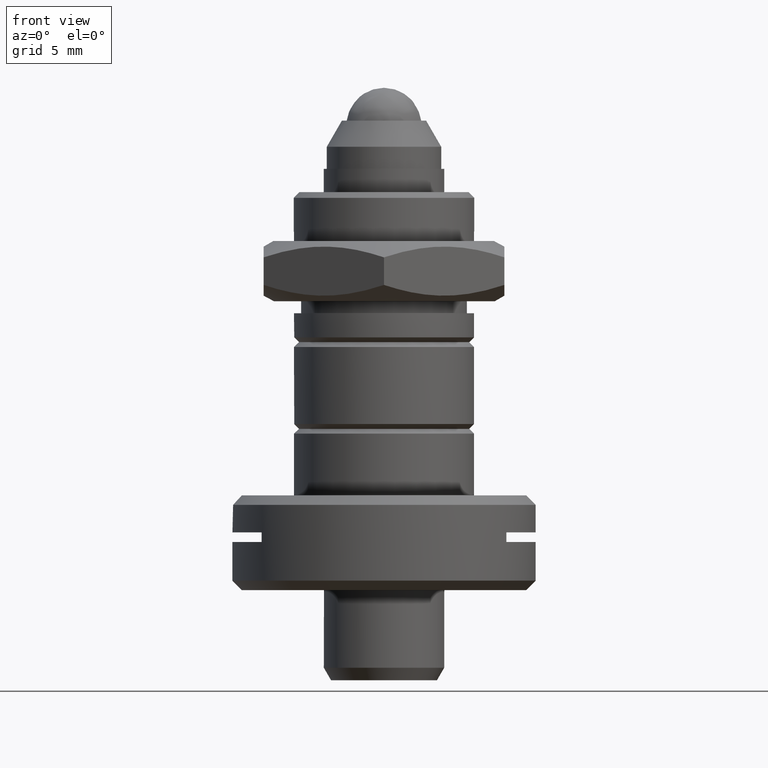
[diagram: clean part render]
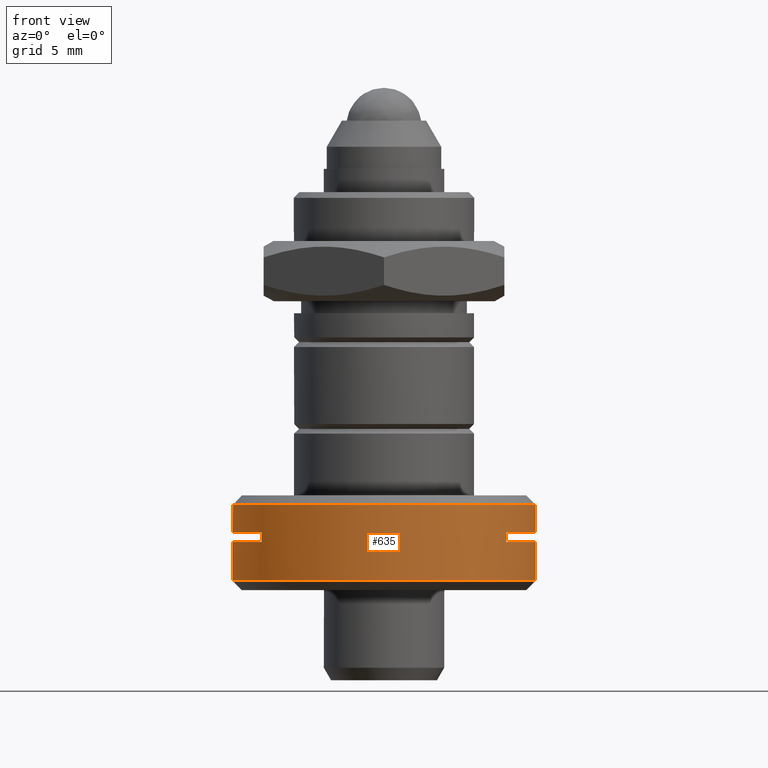
[diagram: same view with one face highlighted and labeled with its STEP entity id]
A machine part, front view. The second image highlights one B-rep face of the part: STEP entity #635.
In plain terms, the highlighted cylindrical surface (bore or boss wall) has radius 8 mm, axis along (0, 0, 1).
Its self-contained STEP definition (entity closure, byte-faithful):
#137 = LINE ( 'NONE', #338, #236 ) ;
#160 = CIRCLE ( 'NONE', #854, 8.000000000000000000 ) ;
#168 = ORIENTED_EDGE ( 'NONE', *, *, #1988, .T. ) ;
#220 = VERTEX_POINT ( 'NONE', #2339 ) ;
#236 = VECTOR ( 'NONE', #1534, 1000.000000000000000 ) ;
#297 = LINE ( 'NONE', #531, #1753 ) ;
#303 = CARTESIAN_POINT ( 'NONE',  ( -6.452354611619448121, -4.729388963271392576, -23.95219999999999771 ) ) ;
#338 = CARTESIAN_POINT ( 'NONE',  ( 6.452354611619446345, -4.729388963271392576, -8.179483647207153041 ) ) ;
#359 = CARTESIAN_POINT ( 'NONE',  ( 6.452354611619446345, -4.729388963271392576, -23.44420000000000215 ) ) ;
#379 = CYLINDRICAL_SURFACE ( 'NONE', #506, 8.000000000000000000 ) ;
#412 = EDGE_CURVE ( 'NONE', #2610, #220, #1284, .T. ) ;
#443 = VERTEX_POINT ( 'NONE', #2677 ) ;
#463 = AXIS2_PLACEMENT_3D ( 'NONE', #668, #713, #1100 ) ;
#506 = AXIS2_PLACEMENT_3D ( 'NONE', #2046, #625, #1403 ) ;
#518 = EDGE_CURVE ( 'NONE', #1579, #1579, #682, .T. ) ;
#531 = CARTESIAN_POINT ( 'NONE',  ( -6.452354611619448121, -4.729388963271389912, -8.179483647207153041 ) ) ;
#532 = EDGE_LOOP ( 'NONE', ( #1812 ) ) ;
#561 = EDGE_LOOP ( 'NONE', ( #168 ) ) ;
#610 = VERTEX_POINT ( 'NONE', #359 ) ;
#625 = DIRECTION ( 'NONE',  ( 0.000000000000000000, 0.000000000000000000, 1.000000000000000000 ) ) ;
#635 = ADVANCED_FACE ( 'NONE', ( #791, #832, #1882 ), #379, .T. ) ;
#668 = CARTESIAN_POINT ( 'NONE',  ( 0.000000000000000000, 0.000000000000000000, -25.99220000000001818 ) ) ;
#682 = CIRCLE ( 'NONE', #2495, 8.000000000000000000 ) ;
#713 = DIRECTION ( 'NONE',  ( 0.000000000000000000, 0.000000000000000000, 1.000000000000000000 ) ) ;
#775 = ORIENTED_EDGE ( 'NONE', *, *, #973, .T. ) ;
#791 = FACE_OUTER_BOUND ( 'NONE', #561, .T. ) ;
#832 = FACE_OUTER_BOUND ( 'NONE', #532, .T. ) ;
#854 = AXIS2_PLACEMENT_3D ( 'NONE', #1566, #1794, #1539 ) ;
#973 = EDGE_CURVE ( 'NONE', #610, #2050, #160, .T. ) ;
#974 = CIRCLE ( 'NONE', #463, 8.000000000000000000 ) ;
#1100 = DIRECTION ( 'NONE',  ( -1.000000000000000000, 0.000000000000000000, 0.000000000000000000 ) ) ;
#1196 = ORIENTED_EDGE ( 'NONE', *, *, #1371, .F. ) ;
#1198 = AXIS2_PLACEMENT_3D ( 'NONE', #1922, #1936, #2344 ) ;
#1284 = CIRCLE ( 'NONE', #1198, 8.000000000000000000 ) ;
#1341 = ORIENTED_EDGE ( 'NONE', *, *, #1436, .T. ) ;
#1371 = EDGE_CURVE ( 'NONE', #610, #220, #137, .T. ) ;
#1403 = DIRECTION ( 'NONE',  ( 1.000000000000000000, 0.000000000000000000, 0.000000000000000000 ) ) ;
#1436 = EDGE_CURVE ( 'NONE', #2050, #2610, #297, .T. ) ;
#1534 = DIRECTION ( 'NONE',  ( -0.000000000000000000, -0.000000000000000000, -1.000000000000000000 ) ) ;
#1539 = DIRECTION ( 'NONE',  ( 1.000000000000000000, 0.000000000000000000, 0.000000000000000000 ) ) ;
#1541 = CARTESIAN_POINT ( 'NONE',  ( -6.452354611619448121, -4.729388963271389912, -23.44420000000000215 ) ) ;
#1566 = CARTESIAN_POINT ( 'NONE',  ( 0.000000000000000000, 0.000000000000000000, -23.44420000000000215 ) ) ;
#1579 = VERTEX_POINT ( 'NONE', #1614 ) ;
#1614 = CARTESIAN_POINT ( 'NONE',  ( 8.000000000000000000, 0.000000000000000000, -21.99219999999998976 ) ) ;
#1747 = DIRECTION ( 'NONE',  ( 1.000000000000000000, 0.000000000000000000, 0.000000000000000000 ) ) ;
#1753 = VECTOR ( 'NONE', #2185, 1000.000000000000000 ) ;
#1794 = DIRECTION ( 'NONE',  ( 0.000000000000000000, 0.000000000000000000, 1.000000000000000000 ) ) ;
#1812 = ORIENTED_EDGE ( 'NONE', *, *, #518, .T. ) ;
#1882 = FACE_BOUND ( 'NONE', #2135, .T. ) ;
#1922 = CARTESIAN_POINT ( 'NONE',  ( 0.000000000000000000, 0.000000000000000000, -23.95219999999999771 ) ) ;
#1936 = DIRECTION ( 'NONE',  ( 0.000000000000000000, 0.000000000000000000, -1.000000000000000000 ) ) ;
#1955 = DIRECTION ( 'NONE',  ( 0.000000000000000000, 0.000000000000000000, -1.000000000000000000 ) ) ;
#1988 = EDGE_CURVE ( 'NONE', #443, #443, #974, .T. ) ;
#2046 = CARTESIAN_POINT ( 'NONE',  ( 0.000000000000000000, 0.000000000000000000, -23.44420000000000215 ) ) ;
#2050 = VERTEX_POINT ( 'NONE', #1541 ) ;
#2135 = EDGE_LOOP ( 'NONE', ( #775, #1341, #2431, #1196 ) ) ;
#2185 = DIRECTION ( 'NONE',  ( -0.000000000000000000, -0.000000000000000000, -1.000000000000000000 ) ) ;
#2321 = CARTESIAN_POINT ( 'NONE',  ( 0.000000000000000000, 0.000000000000000000, -21.99219999999998976 ) ) ;
#2339 = CARTESIAN_POINT ( 'NONE',  ( 6.452354611619446345, -4.729388963271392576, -23.95219999999999771 ) ) ;
#2344 = DIRECTION ( 'NONE',  ( -1.000000000000000000, 0.000000000000000000, 0.000000000000000000 ) ) ;
#2431 = ORIENTED_EDGE ( 'NONE', *, *, #412, .T. ) ;
#2495 = AXIS2_PLACEMENT_3D ( 'NONE', #2321, #1955, #1747 ) ;
#2610 = VERTEX_POINT ( 'NONE', #303 ) ;
#2677 = CARTESIAN_POINT ( 'NONE',  ( -8.000000000000000000, 0.000000000000000000, -25.99220000000001818 ) ) ;